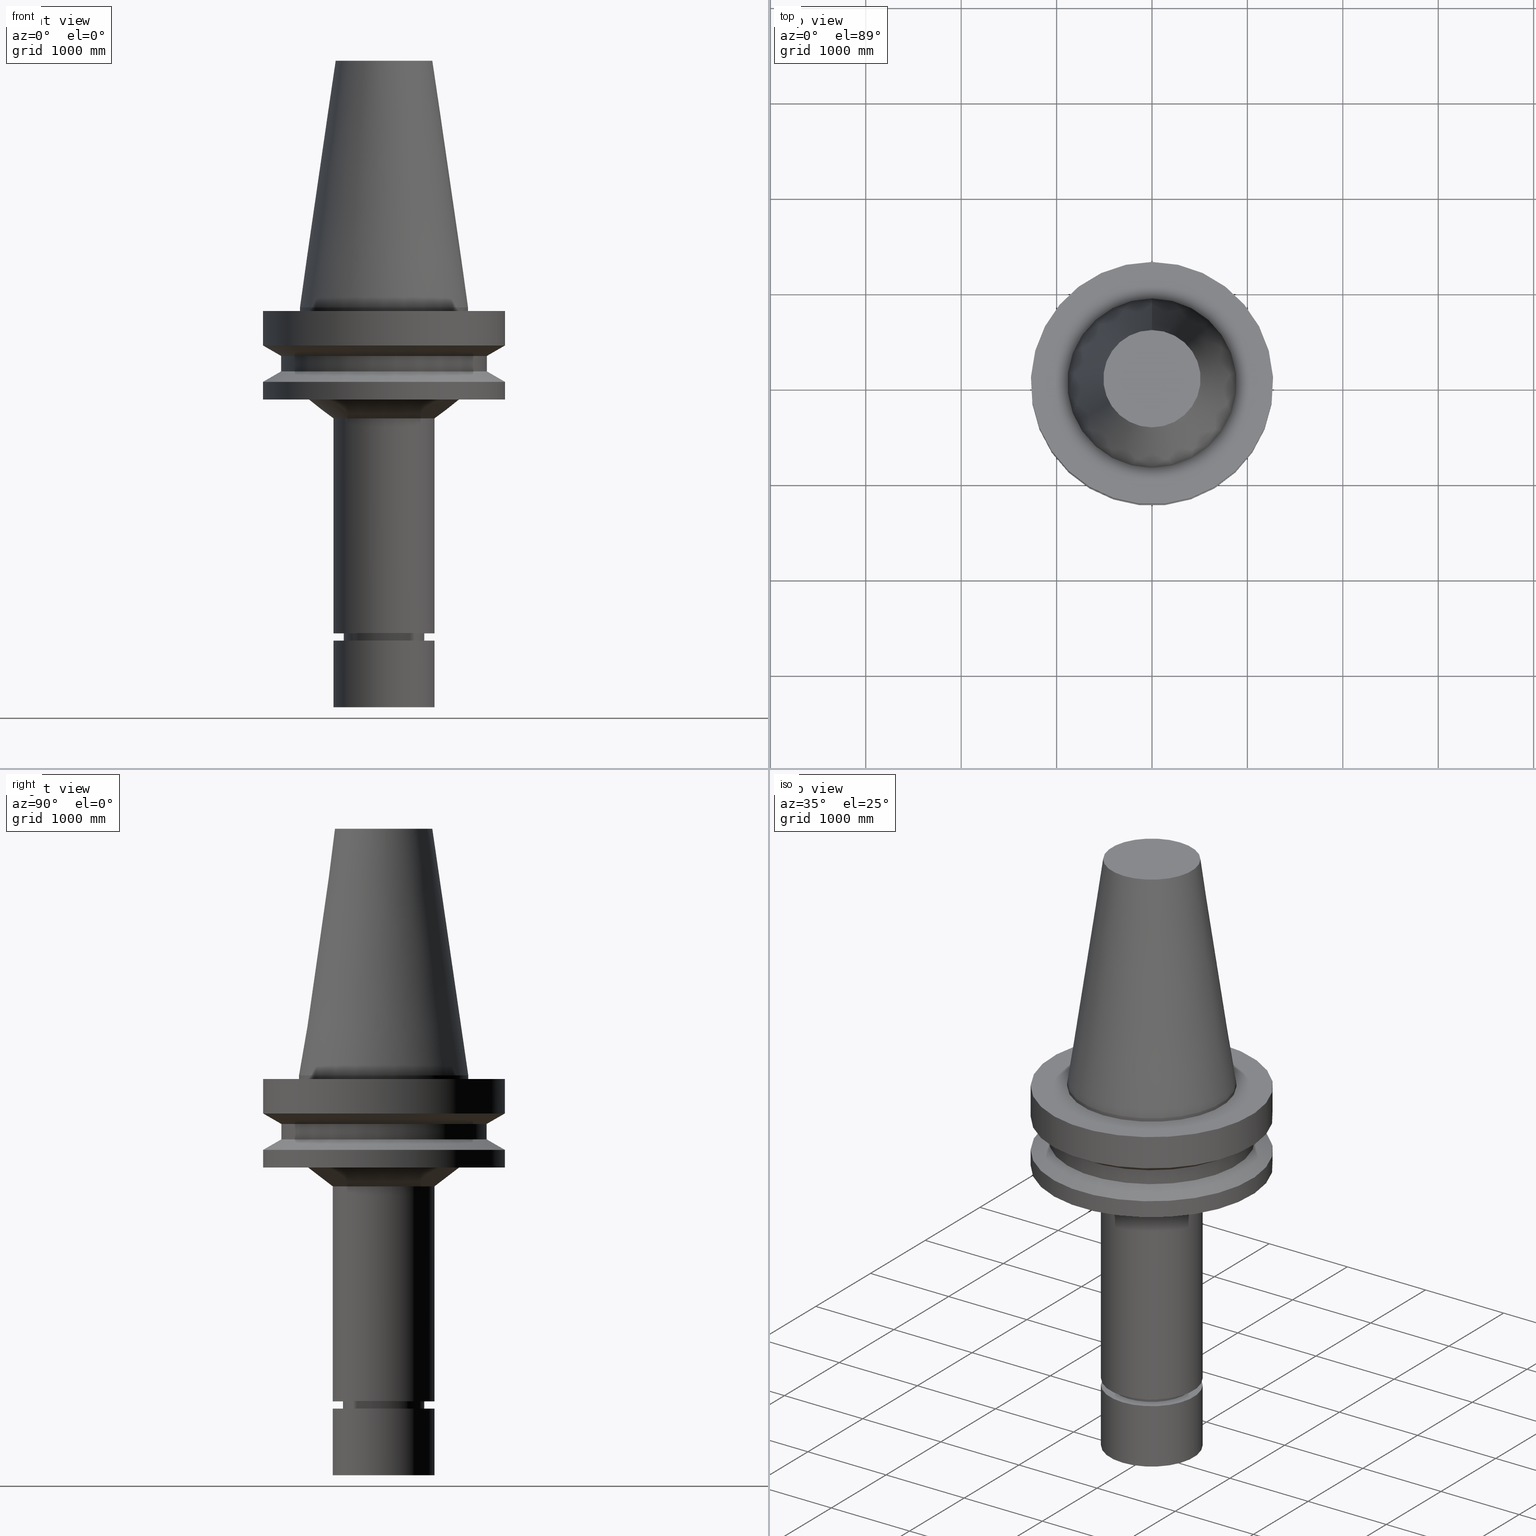
[diagram: canonical four-view strip — front | top / right | iso, engineering-drawing reading convention]
A machine part, canonical four-view strip (front | top / right | iso — engineering-drawing reading convention). The complete STEP part file that produces these views, byte-faithful:
ISO-10303-21;
HEADER;
FILE_DESCRIPTION((''),'1');
FILE_NAME('V:/90_\X2\53D65F9730C730FC30BF\X0\/00_\X2\6DE18DEF30C730FC30BF\X0\/ALL/BBT-BKUS\X2\FF76FF80FF9BFF78FF9E752852A05DE556F3\X0\201801/BBT50-MEGAER/BBT50-MEGAER25-165NL.stp','2018-02-02T08:12:36',(''),(''),'Spatial Interop R21 SP3','Kubotek KeyCreator 2011 V10.0.2 (22737)',' ');
FILE_SCHEMA(('automotive_design'));
ENDSEC;
DATA;
#1=MECHANICAL_DESIGN_GEOMETRIC_PRESENTATION_REPRESENTATION(' ',(#14,#15,#16,#17,#18,#19,#20,#21,#22,#23,#24,#25,#26,#27,#28,#29,#30,#31,#32,#33,#34,#35,#36,#37,#38,#39,#40,#41,#42,#43,#44,#45,#46,#47,#48,#49,#50,#51,#52,#53,#54,#55),#10);
#2=PRODUCT_DEFINITION_CONTEXT('',#56,'design');
#3=APPLICATION_PROTOCOL_DEFINITION('INTERNATIONAL STANDARD','automotive_design',1994,#56);
#4=PRODUCT_CATEGORY_RELATIONSHIP('NONE','NONE',#57,#58);
#5=SHAPE_DEFINITION_REPRESENTATION(#59,#60);
#6=PRODUCT_DEFINITION_CONTEXT('',#61,'design');
#7=APPLICATION_PROTOCOL_DEFINITION('INTERNATIONAL STANDARD','automotive_design',1994,#61);
#8=PRODUCT_CATEGORY_RELATIONSHIP('NONE','NONE',#62,#63);
#9=SHAPE_DEFINITION_REPRESENTATION(#64,#65);
#10= (GEOMETRIC_REPRESENTATION_CONTEXT(3)GLOBAL_UNCERTAINTY_ASSIGNED_CONTEXT((#68))GLOBAL_UNIT_ASSIGNED_CONTEXT((#70,#71,#72))REPRESENTATION_CONTEXT('NONE','WORKSPACE'));
#14=STYLED_ITEM('',(#74,#75),#76);
#15=STYLED_ITEM('',(#77),#78);
#16=STYLED_ITEM('',(#79),#80);
#17=STYLED_ITEM('',(#81),#82);
#18=STYLED_ITEM('',(#83,#84),#85);
#19=STYLED_ITEM('',(#86),#87);
#20=STYLED_ITEM('',(#88,#89),#90);
#21=STYLED_ITEM('',(#91,#92),#93);
#22=STYLED_ITEM('',(#94,#95),#96);
#23=STYLED_ITEM('',(#97,#98),#99);
#24=STYLED_ITEM('',(#100),#101);
#25=STYLED_ITEM('',(#102,#103),#104);
#26=STYLED_ITEM('',(#105),#106);
#27=STYLED_ITEM('',(#107,#108),#109);
#28=STYLED_ITEM('',(#110,#111),#112);
#29=STYLED_ITEM('',(#113,#114),#115);
#30=STYLED_ITEM('',(#116,#117),#118);
#31=STYLED_ITEM('',(#119,#120),#121);
#32=STYLED_ITEM('',(#122),#123);
#33=STYLED_ITEM('',(#124),#125);
#34=STYLED_ITEM('',(#126,#127),#128);
#35=STYLED_ITEM('',(#129,#130),#131);
#36=STYLED_ITEM('',(#132),#133);
#37=STYLED_ITEM('',(#134,#135),#136);
#38=STYLED_ITEM('',(#137),#138);
#39=STYLED_ITEM('',(#139),#140);
#40=STYLED_ITEM('',(#141,#142),#143);
#41=STYLED_ITEM('',(#144),#145);
#42=STYLED_ITEM('',(#146,#147),#148);
#43=STYLED_ITEM('',(#149,#150),#151);
#44=STYLED_ITEM('',(#152,#153),#154);
#45=STYLED_ITEM('',(#155,#156),#157);
#46=STYLED_ITEM('',(#158),#159);
#47=STYLED_ITEM('',(#160),#161);
#48=STYLED_ITEM('',(#162,#163),#164);
#49=STYLED_ITEM('',(#165),#166);
#50=STYLED_ITEM('',(#167),#168);
#51=STYLED_ITEM('',(#169,#170),#171);
#52=STYLED_ITEM('',(#172),#173);
#53=STYLED_ITEM('',(#174),#175);
#54=STYLED_ITEM('',(#176,#177),#178);
#55=STYLED_ITEM('',(#179),#180);
#56=APPLICATION_CONTEXT(' ');
#57=PRODUCT_CATEGORY('part','NONE');
#58=PRODUCT_RELATED_PRODUCT_CATEGORY('detail',' ',(#181));
#59=PRODUCT_DEFINITION_SHAPE('NONE','NONE',#182);
#60=ADVANCED_BREP_SHAPE_REPRESENTATION('Unnamed[1]',(#85,#183),#10);
#61=APPLICATION_CONTEXT(' ');
#62=PRODUCT_CATEGORY('part','NONE');
#63=PRODUCT_RELATED_PRODUCT_CATEGORY('detail',' ',(#184));
#64=PRODUCT_DEFINITION_SHAPE('NONE','NONE',#185);
#65=ADVANCED_BREP_SHAPE_REPRESENTATION('Unnamed[1]',(#109,#186),#10);
#68=UNCERTAINTY_MEASURE_WITH_UNIT(LENGTH_MEASURE(1.0E-006),#70,'','');
#70= (CONVERSION_BASED_UNIT('INCH',#189)LENGTH_UNIT()NAMED_UNIT(#192));
#71= (NAMED_UNIT(#194)PLANE_ANGLE_UNIT()SI_UNIT($,.RADIAN.));
#72= (NAMED_UNIT(#194)SOLID_ANGLE_UNIT()SI_UNIT($,.STERADIAN.));
#74=PRESENTATION_STYLE_ASSIGNMENT((#200));
#75=PRESENTATION_STYLE_ASSIGNMENT((#201));
#76=ADVANCED_FACE('Unnamed[1]',(#202,#203),#204,.T.);
#77=PRESENTATION_STYLE_ASSIGNMENT((#205));
#78=EDGE_CURVE('Unnamed[1]',#206,#206,#207,.T.);
#79=PRESENTATION_STYLE_ASSIGNMENT((#208));
#80=EDGE_CURVE('Unnamed[1]',#209,#209,#210,.T.);
#81=PRESENTATION_STYLE_ASSIGNMENT((#211));
#82=EDGE_CURVE('Unnamed[1]',#212,#212,#213,.T.);
#83=PRESENTATION_STYLE_ASSIGNMENT((#214));
#84=PRESENTATION_STYLE_ASSIGNMENT((#215));
#85=MANIFOLD_SOLID_BREP('Unnamed[1]',#216);
#86=PRESENTATION_STYLE_ASSIGNMENT((#217));
#87=EDGE_CURVE('Unnamed[1]',#218,#218,#219,.T.);
#88=PRESENTATION_STYLE_ASSIGNMENT((#220));
#89=PRESENTATION_STYLE_ASSIGNMENT((#221));
#90=ADVANCED_FACE('Unnamed[1]',(#222,#223),#224,.T.);
#91=PRESENTATION_STYLE_ASSIGNMENT((#225));
#92=PRESENTATION_STYLE_ASSIGNMENT((#226));
#93=ADVANCED_FACE('Unnamed[1]',(#227,#228),#229,.T.);
#94=PRESENTATION_STYLE_ASSIGNMENT((#230));
#95=PRESENTATION_STYLE_ASSIGNMENT((#231));
#96=ADVANCED_FACE('Unnamed[1]',(#232,#233),#234,.T.);
#97=PRESENTATION_STYLE_ASSIGNMENT((#235));
#98=PRESENTATION_STYLE_ASSIGNMENT((#236));
#99=ADVANCED_FACE('Unnamed[1]',(#237),#238,.T.);
#100=PRESENTATION_STYLE_ASSIGNMENT((#239));
#101=EDGE_CURVE('Unnamed[1]',#240,#240,#241,.T.);
#102=PRESENTATION_STYLE_ASSIGNMENT((#242));
#103=PRESENTATION_STYLE_ASSIGNMENT((#243));
#104=ADVANCED_FACE('Unnamed[1]',(#244,#245),#246,.T.);
#105=PRESENTATION_STYLE_ASSIGNMENT((#247));
#106=EDGE_CURVE('Unnamed[1]',#248,#248,#249,.T.);
#107=PRESENTATION_STYLE_ASSIGNMENT((#250));
#108=PRESENTATION_STYLE_ASSIGNMENT((#251));
#109=MANIFOLD_SOLID_BREP('Unnamed[1]',#252);
#110=PRESENTATION_STYLE_ASSIGNMENT((#253));
#111=PRESENTATION_STYLE_ASSIGNMENT((#254));
#112=ADVANCED_FACE('Unnamed[1]',(#255,#256),#257,.T.);
#113=PRESENTATION_STYLE_ASSIGNMENT((#258));
#114=PRESENTATION_STYLE_ASSIGNMENT((#259));
#115=ADVANCED_FACE('Unnamed[1]',(#260,#261),#262,.T.);
#116=PRESENTATION_STYLE_ASSIGNMENT((#263));
#117=PRESENTATION_STYLE_ASSIGNMENT((#264));
#118=ADVANCED_FACE('Unnamed[1]',(#265,#266),#267,.T.);
#119=PRESENTATION_STYLE_ASSIGNMENT((#268));
#120=PRESENTATION_STYLE_ASSIGNMENT((#269));
#121=ADVANCED_FACE('Unnamed[1]',(#270),#271,.T.);
#122=PRESENTATION_STYLE_ASSIGNMENT((#272));
#123=EDGE_CURVE('Unnamed[1]',#273,#273,#274,.T.);
#124=PRESENTATION_STYLE_ASSIGNMENT((#275));
#125=EDGE_CURVE('Unnamed[1]',#276,#276,#277,.T.);
#126=PRESENTATION_STYLE_ASSIGNMENT((#278));
#127=PRESENTATION_STYLE_ASSIGNMENT((#279));
#128=ADVANCED_FACE('Unnamed[1]',(#280,#281),#282,.T.);
#129=PRESENTATION_STYLE_ASSIGNMENT((#283));
#130=PRESENTATION_STYLE_ASSIGNMENT((#284));
#131=ADVANCED_FACE('Unnamed[1]',(#285,#286),#287,.T.);
#132=PRESENTATION_STYLE_ASSIGNMENT((#288));
#133=EDGE_CURVE('Unnamed[1]',#289,#289,#290,.T.);
#134=PRESENTATION_STYLE_ASSIGNMENT((#291));
#135=PRESENTATION_STYLE_ASSIGNMENT((#292));
#136=ADVANCED_FACE('Unnamed[1]',(#293,#294),#295,.T.);
#137=PRESENTATION_STYLE_ASSIGNMENT((#296));
#138=EDGE_CURVE('Unnamed[1]',#297,#297,#298,.T.);
#139=PRESENTATION_STYLE_ASSIGNMENT((#299));
#140=EDGE_CURVE('Unnamed[1]',#300,#300,#301,.T.);
#141=PRESENTATION_STYLE_ASSIGNMENT((#302));
#142=PRESENTATION_STYLE_ASSIGNMENT((#303));
#143=ADVANCED_FACE('Unnamed[1]',(#304,#305),#306,.T.);
#144=PRESENTATION_STYLE_ASSIGNMENT((#307));
#145=EDGE_CURVE('Unnamed[1]',#308,#308,#309,.T.);
#146=PRESENTATION_STYLE_ASSIGNMENT((#310));
#147=PRESENTATION_STYLE_ASSIGNMENT((#311));
#148=ADVANCED_FACE('Unnamed[1]',(#312,#313),#314,.T.);
#149=PRESENTATION_STYLE_ASSIGNMENT((#315));
#150=PRESENTATION_STYLE_ASSIGNMENT((#316));
#151=ADVANCED_FACE('Unnamed[1]',(#317,#318),#319,.T.);
#152=PRESENTATION_STYLE_ASSIGNMENT((#320));
#153=PRESENTATION_STYLE_ASSIGNMENT((#321));
#154=ADVANCED_FACE('Unnamed[1]',(#322,#323),#324,.T.);
#155=PRESENTATION_STYLE_ASSIGNMENT((#325));
#156=PRESENTATION_STYLE_ASSIGNMENT((#326));
#157=ADVANCED_FACE('Unnamed[1]',(#327),#328,.T.);
#158=PRESENTATION_STYLE_ASSIGNMENT((#329));
#159=EDGE_CURVE('Unnamed[1]',#330,#330,#331,.T.);
#160=PRESENTATION_STYLE_ASSIGNMENT((#332));
#161=EDGE_CURVE('Unnamed[1]',#333,#333,#334,.T.);
#162=PRESENTATION_STYLE_ASSIGNMENT((#335));
#163=PRESENTATION_STYLE_ASSIGNMENT((#336));
#164=ADVANCED_FACE('Unnamed[1]',(#337,#338),#339,.T.);
#165=PRESENTATION_STYLE_ASSIGNMENT((#340));
#166=EDGE_CURVE('Unnamed[1]',#341,#341,#342,.T.);
#167=PRESENTATION_STYLE_ASSIGNMENT((#343));
#168=EDGE_CURVE('Unnamed[1]',#344,#344,#345,.T.);
#169=PRESENTATION_STYLE_ASSIGNMENT((#346));
#170=PRESENTATION_STYLE_ASSIGNMENT((#347));
#171=ADVANCED_FACE('Unnamed[1]',(#348),#349,.T.);
#172=PRESENTATION_STYLE_ASSIGNMENT((#350));
#173=EDGE_CURVE('Unnamed[1]',#351,#351,#352,.T.);
#174=PRESENTATION_STYLE_ASSIGNMENT((#353));
#175=EDGE_CURVE('Unnamed[1]',#354,#354,#355,.T.);
#176=PRESENTATION_STYLE_ASSIGNMENT((#356));
#177=PRESENTATION_STYLE_ASSIGNMENT((#357));
#178=ADVANCED_FACE('Unnamed[1]',(#358,#359),#360,.T.);
#179=PRESENTATION_STYLE_ASSIGNMENT((#361));
#180=EDGE_CURVE('Unnamed[1]',#362,#362,#363,.T.);
#181=PRODUCT('Unnamed[1]','Unnamed[1]','PART-Unnamed[1]-DESC',(#364));
#182=PRODUCT_DEFINITION('NONE','NONE',#365,#2);
#183=AXIS2_PLACEMENT_3D('',#366,#367,#368);
#184=PRODUCT('Unnamed[1]','Unnamed[1]','PART-Unnamed[1]-DESC',(#369));
#185=PRODUCT_DEFINITION('NONE','NONE',#370,#6);
#186=AXIS2_PLACEMENT_3D('',#371,#372,#373);
#189=LENGTH_MEASURE_WITH_UNIT(LENGTH_MEASURE(25.4),#374);
#192=DIMENSIONAL_EXPONENTS(1.0,0.0,0.0,0.0,0.0,0.0,0.0);
#194=DIMENSIONAL_EXPONENTS(0.0,0.0,0.0,0.0,0.0,0.0,0.0);
#200=SURFACE_STYLE_USAGE(.BOTH.,#375);
#201=CURVE_STYLE('',#376,POSITIVE_LENGTH_MEASURE(1000.0),#377);
#202=FACE_BOUND('',#378,.T.);
#203=FACE_BOUND('',#379,.T.);
#204=CONICAL_SURFACE('',#380,46.25,1.04719755108882);
#205=CURVE_STYLE('',#381,POSITIVE_LENGTH_MEASURE(1000.0),#382);
#206=VERTEX_POINT('',#383);
#207=CIRCLE('',#384,50.0);
#208=CURVE_STYLE('',#385,POSITIVE_LENGTH_MEASURE(1000.0),#386);
#209=VERTEX_POINT('',#387);
#210=CIRCLE('',#388,50.0);
#211=CURVE_STYLE('',#389,POSITIVE_LENGTH_MEASURE(1000.0),#390);
#212=VERTEX_POINT('',#391);
#213=CIRCLE('',#392,34.925);
#214=SURFACE_STYLE_USAGE(.BOTH.,#393);
#215=CURVE_STYLE('',#394,POSITIVE_LENGTH_MEASURE(1000.0),#395);
#216=CLOSED_SHELL('',(#157,#115,#136,#112,#90,#143,#96,#154,#151,#128,#76,#164,#118,#93,#148,#178,#104,#121));
#217=CURVE_STYLE('',#396,POSITIVE_LENGTH_MEASURE(1000.0),#397);
#218=VERTEX_POINT('',#398);
#219=CIRCLE('',#399,34.925);
#220=SURFACE_STYLE_USAGE(.BOTH.,#400);
#221=CURVE_STYLE('',#401,POSITIVE_LENGTH_MEASURE(1000.0),#402);
#222=FACE_BOUND('',#403,.T.);
#223=FACE_BOUND('',#404,.T.);
#224=CYLINDRICAL_SURFACE('',#405,16.7499999999962);
#225=SURFACE_STYLE_USAGE(.BOTH.,#406);
#226=CURVE_STYLE('',#407,POSITIVE_LENGTH_MEASURE(1000.0),#408);
#227=FACE_BOUND('',#409,.T.);
#228=FACE_BOUND('',#410,.T.);
#229=CYLINDRICAL_SURFACE('',#411,50.0);
#230=SURFACE_STYLE_USAGE(.BOTH.,#412);
#231=CURVE_STYLE('',#413,POSITIVE_LENGTH_MEASURE(1000.0),#414);
#232=FACE_BOUND('',#415,.T.);
#233=FACE_BOUND('',#416,.T.);
#234=CYLINDRICAL_SURFACE('',#417,20.9999999999967);
#235=SURFACE_STYLE_USAGE(.BOTH.,#418);
#236=CURVE_STYLE('',#419,POSITIVE_LENGTH_MEASURE(1000.0),#420);
#237=FACE_OUTER_BOUND('',#421,.T.);
#238=PLANE('',#422);
#239=CURVE_STYLE('',#423,POSITIVE_LENGTH_MEASURE(1000.0),#424);
#240=VERTEX_POINT('',#425);
#241=CIRCLE('',#426,14.9000000000006);
#242=SURFACE_STYLE_USAGE(.BOTH.,#427);
#243=CURVE_STYLE('',#428,POSITIVE_LENGTH_MEASURE(1000.0),#429);
#244=FACE_BOUND('',#430,.T.);
#245=FACE_BOUND('',#431,.T.);
#246=CONICAL_SURFACE('',#432,27.5020833325942,0.144812498253157);
#247=CURVE_STYLE('',#433,POSITIVE_LENGTH_MEASURE(1000.0),#434);
#248=VERTEX_POINT('',#435);
#249=CIRCLE('',#436,50.0);
#250=SURFACE_STYLE_USAGE(.BOTH.,#437);
#251=CURVE_STYLE('',#438,POSITIVE_LENGTH_MEASURE(1000.0),#439);
#252=CLOSED_SHELL('',(#171,#99,#131));
#253=SURFACE_STYLE_USAGE(.BOTH.,#440);
#254=CURVE_STYLE('',#441,POSITIVE_LENGTH_MEASURE(1000.0),#442);
#255=FACE_BOUND('',#443,.T.);
#256=FACE_BOUND('',#444,.T.);
#257=CONICAL_SURFACE('',#445,16.3750000000008,1.04719755120057);
#258=SURFACE_STYLE_USAGE(.BOTH.,#446);
#259=CURVE_STYLE('',#447,POSITIVE_LENGTH_MEASURE(1000.0),#448);
#260=FACE_BOUND('',#449,.T.);
#261=FACE_BOUND('',#450,.T.);
#262=CONICAL_SURFACE('',#451,15.4500000000003,0.523598775597999);
#263=SURFACE_STYLE_USAGE(.BOTH.,#452);
#264=CURVE_STYLE('',#453,POSITIVE_LENGTH_MEASURE(1000.0),#454);
#265=FACE_BOUND('',#455,.T.);
#266=FACE_BOUND('',#456,.T.);
#267=CONICAL_SURFACE('',#457,46.25,1.04719755108882);
#268=SURFACE_STYLE_USAGE(.BOTH.,#458);
#269=CURVE_STYLE('',#459,POSITIVE_LENGTH_MEASURE(1000.0),#460);
#270=FACE_OUTER_BOUND('',#461,.T.);
#271=PLANE('',#462);
#272=CURVE_STYLE('',#463,POSITIVE_LENGTH_MEASURE(1000.0),#464);
#273=VERTEX_POINT('',#465);
#274=CIRCLE('',#466,16.7500000000017);
#275=CURVE_STYLE('',#467,POSITIVE_LENGTH_MEASURE(1000.0),#468);
#276=VERTEX_POINT('',#469);
#277=CIRCLE('',#470,16.0);
#278=SURFACE_STYLE_USAGE(.BOTH.,#471);
#279=CURVE_STYLE('',#472,POSITIVE_LENGTH_MEASURE(1000.0),#473);
#280=FACE_BOUND('',#474,.T.);
#281=FACE_BOUND('',#475,.T.);
#282=CYLINDRICAL_SURFACE('',#476,50.0);
#283=SURFACE_STYLE_USAGE(.BOTH.,#477);
#284=CURVE_STYLE('',#478,POSITIVE_LENGTH_MEASURE(1000.0),#479);
#285=FACE_BOUND('',#480,.T.);
#286=FACE_BOUND('',#481,.T.);
#287=CYLINDRICAL_SURFACE('',#482,21.0);
#288=CURVE_STYLE('',#483,POSITIVE_LENGTH_MEASURE(1000.0),#484);
#289=VERTEX_POINT('',#485);
#290=CIRCLE('',#486,21.0);
#291=SURFACE_STYLE_USAGE(.BOTH.,#487);
#292=CURVE_STYLE('',#488,POSITIVE_LENGTH_MEASURE(1000.0),#489);
#293=FACE_BOUND('',#490,.T.);
#294=FACE_BOUND('',#491,.T.);
#295=CYLINDRICAL_SURFACE('',#492,16.0);
#296=CURVE_STYLE('',#493,POSITIVE_LENGTH_MEASURE(1000.0),#494);
#297=VERTEX_POINT('',#495);
#298=CIRCLE('',#496,21.0000000000002);
#299=CURVE_STYLE('',#497,POSITIVE_LENGTH_MEASURE(1000.0),#498);
#300=VERTEX_POINT('',#499);
#301=CIRCLE('',#500,42.5);
#302=SURFACE_STYLE_USAGE(.BOTH.,#501);
#303=CURVE_STYLE('',#502,POSITIVE_LENGTH_MEASURE(1000.0),#503);
#304=FACE_OUTER_BOUND('',#504,.T.);
#305=FACE_BOUND('',#505,.T.);
#306=PLANE('',#506);
#307=CURVE_STYLE('',#507,POSITIVE_LENGTH_MEASURE(1000.0),#508);
#308=VERTEX_POINT('',#509);
#309=CIRCLE('',#510,21.0);
#310=SURFACE_STYLE_USAGE(.BOTH.,#511);
#311=CURVE_STYLE('',#512,POSITIVE_LENGTH_MEASURE(1000.0),#513);
#312=FACE_BOUND('',#514,.T.);
#313=FACE_OUTER_BOUND('',#515,.T.);
#314=PLANE('',#516);
#315=SURFACE_STYLE_USAGE(.BOTH.,#517);
#316=CURVE_STYLE('',#518,POSITIVE_LENGTH_MEASURE(1000.0),#519);
#317=FACE_OUTER_BOUND('',#520,.T.);
#318=FACE_BOUND('',#521,.T.);
#319=PLANE('',#522);
#320=SURFACE_STYLE_USAGE(.BOTH.,#523);
#321=CURVE_STYLE('',#524,POSITIVE_LENGTH_MEASURE(1000.0),#525);
#322=FACE_BOUND('',#526,.T.);
#323=FACE_BOUND('',#527,.T.);
#324=CONICAL_SURFACE('',#528,26.0717863494507,0.917452318827352);
#325=SURFACE_STYLE_USAGE(.BOTH.,#529);
#326=CURVE_STYLE('',#530,POSITIVE_LENGTH_MEASURE(1000.0),#531);
#327=FACE_OUTER_BOUND('',#532,.T.);
#328=PLANE('',#533);
#329=CURVE_STYLE('',#534,POSITIVE_LENGTH_MEASURE(1000.0),#535);
#330=VERTEX_POINT('',#536);
#331=CIRCLE('',#537,20.9999999999932);
#332=CURVE_STYLE('',#538,POSITIVE_LENGTH_MEASURE(1000.0),#539);
#333=VERTEX_POINT('',#540);
#334=CIRCLE('',#541,16.7499999999907);
#335=SURFACE_STYLE_USAGE(.BOTH.,#542);
#336=CURVE_STYLE('',#543,POSITIVE_LENGTH_MEASURE(1000.0),#544);
#337=FACE_BOUND('',#545,.T.);
#338=FACE_BOUND('',#546,.T.);
#339=CYLINDRICAL_SURFACE('',#547,42.5);
#340=CURVE_STYLE('',#548,POSITIVE_LENGTH_MEASURE(1000.0),#549);
#341=VERTEX_POINT('',#550);
#342=CIRCLE('',#551,31.1435726989081);
#343=CURVE_STYLE('',#552,POSITIVE_LENGTH_MEASURE(1000.0),#553);
#344=VERTEX_POINT('',#554);
#345=CIRCLE('',#555,50.0);
#346=SURFACE_STYLE_USAGE(.BOTH.,#556);
#347=CURVE_STYLE('',#557,POSITIVE_LENGTH_MEASURE(1000.0),#558);
#348=FACE_OUTER_BOUND('',#559,.T.);
#349=PLANE('',#560);
#350=CURVE_STYLE('',#561,POSITIVE_LENGTH_MEASURE(1000.0),#562);
#351=VERTEX_POINT('',#563);
#352=CIRCLE('',#564,16.0);
#353=CURVE_STYLE('',#565,POSITIVE_LENGTH_MEASURE(1000.0),#566);
#354=VERTEX_POINT('',#567);
#355=CIRCLE('',#568,20.0791666651884);
#356=SURFACE_STYLE_USAGE(.BOTH.,#569);
#357=CURVE_STYLE('',#570,POSITIVE_LENGTH_MEASURE(1000.0),#571);
#358=FACE_BOUND('',#572,.T.);
#359=FACE_BOUND('',#573,.T.);
#360=CYLINDRICAL_SURFACE('',#574,34.925);
#361=CURVE_STYLE('',#575,POSITIVE_LENGTH_MEASURE(1000.0),#576);
#362=VERTEX_POINT('',#577);
#363=CIRCLE('',#578,42.5);
#364=PRODUCT_CONTEXT('',#56,'mechanical');
#365=PRODUCT_DEFINITION_FORMATION_WITH_SPECIFIED_SOURCE(' ','NONE',#181,.NOT_KNOWN.);
#366=CARTESIAN_POINT('',(0.0,0.0,0.0));
#367=DIRECTION('',(0.0,0.0,1.0));
#368=DIRECTION('',(1.0,0.0,0.0));
#369=PRODUCT_CONTEXT('',#61,'mechanical');
#370=PRODUCT_DEFINITION_FORMATION_WITH_SPECIFIED_SOURCE(' ','NONE',#184,.NOT_KNOWN.);
#371=CARTESIAN_POINT('',(0.0,0.0,0.0));
#372=DIRECTION('',(0.0,0.0,1.0));
#373=DIRECTION('',(1.0,0.0,0.0));
#374= (NAMED_UNIT(#192)LENGTH_UNIT()SI_UNIT(.MILLI.,.METRE.));
#375=SURFACE_SIDE_STYLE('',(#580));
#376=DRAUGHTING_PRE_DEFINED_CURVE_FONT('continuous');
#377=COLOUR_RGB('',0.0,1.0,0.0);
#378=EDGE_LOOP('',(#581));
#379=EDGE_LOOP('',(#582));
#380=AXIS2_PLACEMENT_3D('',#583,#584,#585);
#381=DRAUGHTING_PRE_DEFINED_CURVE_FONT('continuous');
#382=COLOUR_RGB('',0.0,1.0,0.0);
#383=CARTESIAN_POINT('',(1.87983283669119E-015,50.0,-30.7000000000001));
#384=AXIS2_PLACEMENT_3D('',#586,#587,#588);
#385=DRAUGHTING_PRE_DEFINED_CURVE_FONT('continuous');
#386=COLOUR_RGB('',0.0,1.0,0.0);
#387=CARTESIAN_POINT('',(9.61347737330674E-016,50.0,-15.7));
#388=AXIS2_PLACEMENT_3D('',#589,#590,#591);
#389=DRAUGHTING_PRE_DEFINED_CURVE_FONT('continuous');
#390=COLOUR_RGB('',0.0,1.0,0.0);
#391=CARTESIAN_POINT('',(9.18485099360511E-017,34.925,-1.5));
#392=AXIS2_PLACEMENT_3D('',#592,#593,#594);
#393=SURFACE_SIDE_STYLE('',(#595));
#394=DRAUGHTING_PRE_DEFINED_CURVE_FONT('continuous');
#395=COLOUR_RGB('',0.0,1.0,0.0);
#396=DRAUGHTING_PRE_DEFINED_CURVE_FONT('continuous');
#397=COLOUR_RGB('',0.0,1.0,0.0);
#398=CARTESIAN_POINT('',(-4.30483861169435E-031,34.925,4.27707894602213E-015));
#399=AXIS2_PLACEMENT_3D('',#596,#597,#598);
#400=SURFACE_SIDE_STYLE('',(#599));
#401=DRAUGHTING_PRE_DEFINED_CURVE_FONT('continuous');
#402=COLOUR_RGB('',0.0,1.0,0.0);
#403=EDGE_LOOP('',(#600));
#404=EDGE_LOOP('',(#601));
#405=AXIS2_PLACEMENT_3D('',#602,#603,#604);
#406=SURFACE_SIDE_STYLE('',(#605));
#407=DRAUGHTING_PRE_DEFINED_CURVE_FONT('continuous');
#408=COLOUR_RGB('',0.0,1.0,0.0);
#409=EDGE_LOOP('',(#606));
#410=EDGE_LOOP('',(#607));
#411=AXIS2_PLACEMENT_3D('',#608,#609,#610);
#412=SURFACE_SIDE_STYLE('',(#611));
#413=DRAUGHTING_PRE_DEFINED_CURVE_FONT('continuous');
#414=COLOUR_RGB('',0.0,1.0,0.0);
#415=EDGE_LOOP('',(#612));
#416=EDGE_LOOP('',(#613));
#417=AXIS2_PLACEMENT_3D('',#614,#615,#616);
#418=SURFACE_SIDE_STYLE('',(#617));
#419=DRAUGHTING_PRE_DEFINED_CURVE_FONT('continuous');
#420=COLOUR_RGB('',0.0,1.0,0.0);
#421=EDGE_LOOP('',(#618));
#422=AXIS2_PLACEMENT_3D('',#619,#620,#621);
#423=DRAUGHTING_PRE_DEFINED_CURVE_FONT('continuous');
#424=COLOUR_RGB('',0.0,1.0,0.0);
#425=CARTESIAN_POINT('',(9.47876622540053E-015,14.9000000000007,-154.8));
#426=AXIS2_PLACEMENT_3D('',#622,#623,#624);
#427=SURFACE_SIDE_STYLE('',(#625));
#428=DRAUGHTING_PRE_DEFINED_CURVE_FONT('continuous');
#429=COLOUR_RGB('',0.0,1.0,0.0);
#430=EDGE_LOOP('',(#626));
#431=EDGE_LOOP('',(#627));
#432=AXIS2_PLACEMENT_3D('',#628,#629,#630);
#433=DRAUGHTING_PRE_DEFINED_CURVE_FONT('continuous');
#434=COLOUR_RGB('',0.0,1.0,0.0);
#435=CARTESIAN_POINT('',(9.18485099360509E-017,50.0,-1.49999999999999));
#436=AXIS2_PLACEMENT_3D('',#631,#632,#633);
#437=SURFACE_SIDE_STYLE('',(#634));
#438=DRAUGHTING_PRE_DEFINED_CURVE_FONT('continuous');
#439=COLOUR_RGB('',0.0,1.0,0.0);
#440=SURFACE_SIDE_STYLE('',(#635));
#441=DRAUGHTING_PRE_DEFINED_CURVE_FONT('continuous');
#442=COLOUR_RGB('',0.0,1.0,0.0);
#443=EDGE_LOOP('',(#636));
#444=EDGE_LOOP('',(#637));
#445=AXIS2_PLACEMENT_3D('',#638,#639,#640);
#446=SURFACE_SIDE_STYLE('',(#641));
#447=DRAUGHTING_PRE_DEFINED_CURVE_FONT('continuous');
#448=COLOUR_RGB('',0.0,1.0,0.0);
#449=EDGE_LOOP('',(#642));
#450=EDGE_LOOP('',(#643));
#451=AXIS2_PLACEMENT_3D('',#644,#645,#646);
#452=SURFACE_SIDE_STYLE('',(#647));
#453=DRAUGHTING_PRE_DEFINED_CURVE_FONT('continuous');
#454=COLOUR_RGB('',0.0,1.0,0.0);
#455=EDGE_LOOP('',(#648));
#456=EDGE_LOOP('',(#649));
#457=AXIS2_PLACEMENT_3D('',#650,#651,#652);
#458=SURFACE_SIDE_STYLE('',(#653));
#459=DRAUGHTING_PRE_DEFINED_CURVE_FONT('continuous');
#460=COLOUR_RGB('',0.0,1.0,0.0);
#461=EDGE_LOOP('',(#654));
#462=AXIS2_PLACEMENT_3D('',#655,#656,#657);
#463=DRAUGHTING_PRE_DEFINED_CURVE_FONT('continuous');
#464=COLOUR_RGB('',0.0,1.0,0.0);
#465=CARTESIAN_POINT('',(8.60114298906023E-015,16.7500000000017,-140.467324865401));
#466=AXIS2_PLACEMENT_3D('',#658,#659,#660);
#467=DRAUGHTING_PRE_DEFINED_CURVE_FONT('continuous');
#468=COLOUR_RGB('',0.0,1.0,0.0);
#469=CARTESIAN_POINT('',(9.36210294914078E-015,16.0,-152.894744111674));
#470=AXIS2_PLACEMENT_3D('',#661,#662,#663);
#471=SURFACE_SIDE_STYLE('',(#664));
#472=DRAUGHTING_PRE_DEFINED_CURVE_FONT('continuous');
#473=COLOUR_RGB('',0.0,1.0,0.0);
#474=EDGE_LOOP('',(#665));
#475=EDGE_LOOP('',(#666));
#476=AXIS2_PLACEMENT_3D('',#667,#668,#669);
#477=SURFACE_SIDE_STYLE('',(#670));
#478=DRAUGHTING_PRE_DEFINED_CURVE_FONT('continuous');
#479=COLOUR_RGB('',0.0,1.0,0.0);
#480=EDGE_LOOP('',(#671));
#481=EDGE_LOOP('',(#672));
#482=AXIS2_PLACEMENT_3D('',#673,#674,#675);
#483=DRAUGHTING_PRE_DEFINED_CURVE_FONT('continuous');
#484=COLOUR_RGB('',0.0,1.0,0.0);
#485=CARTESIAN_POINT('',(1.01033360929657E-014,21.0,-165.0));
#486=AXIS2_PLACEMENT_3D('',#676,#677,#678);
#487=SURFACE_SIDE_STYLE('',(#679));
#488=DRAUGHTING_PRE_DEFINED_CURVE_FONT('continuous');
#489=COLOUR_RGB('',0.0,1.0,0.0);
#490=EDGE_LOOP('',(#680));
#491=EDGE_LOOP('',(#681));
#492=AXIS2_PLACEMENT_3D('',#682,#683,#684);
#493=DRAUGHTING_PRE_DEFINED_CURVE_FONT('continuous');
#494=COLOUR_RGB('',0.0,1.0,0.0);
#495=CARTESIAN_POINT('',(8.23574972426594E-015,21.0000000000003,-134.5));
#496=AXIS2_PLACEMENT_3D('',#685,#686,#687);
#497=DRAUGHTING_PRE_DEFINED_CURVE_FONT('continuous');
#498=COLOUR_RGB('',0.0,1.0,0.0);
#499=CARTESIAN_POINT('',(1.61468902694397E-015,42.5,-26.3698729800001));
#500=AXIS2_PLACEMENT_3D('',#688,#689,#690);
#501=SURFACE_SIDE_STYLE('',(#691));
#502=DRAUGHTING_PRE_DEFINED_CURVE_FONT('continuous');
#503=COLOUR_RGB('',0.0,1.0,0.0);
#504=EDGE_LOOP('',(#692));
#505=EDGE_LOOP('',(#693));
#506=AXIS2_PLACEMENT_3D('',#694,#695,#696);
#507=DRAUGHTING_PRE_DEFINED_CURVE_FONT('continuous');
#508=COLOUR_RGB('',0.0,1.0,0.0);
#509=CARTESIAN_POINT('',(8.41944674413805E-015,21.0,-137.5));
#510=AXIS2_PLACEMENT_3D('',#697,#698,#699);
#511=SURFACE_SIDE_STYLE('',(#700));
#512=DRAUGHTING_PRE_DEFINED_CURVE_FONT('continuous');
#513=COLOUR_RGB('',0.0,1.0,0.0);
#514=EDGE_LOOP('',(#701));
#515=EDGE_LOOP('',(#702));
#516=AXIS2_PLACEMENT_3D('',#703,#704,#705);
#517=SURFACE_SIDE_STYLE('',(#706));
#518=DRAUGHTING_PRE_DEFINED_CURVE_FONT('continuous');
#519=COLOUR_RGB('',0.0,1.0,0.0);
#520=EDGE_LOOP('',(#707));
#521=EDGE_LOOP('',(#708));
#522=AXIS2_PLACEMENT_3D('',#709,#710,#711);
#523=SURFACE_SIDE_STYLE('',(#712));
#524=DRAUGHTING_PRE_DEFINED_CURVE_FONT('continuous');
#525=COLOUR_RGB('',0.0,1.0,0.0);
#526=EDGE_LOOP('',(#713));
#527=EDGE_LOOP('',(#714));
#528=AXIS2_PLACEMENT_3D('',#715,#716,#717);
#529=SURFACE_SIDE_STYLE('',(#718));
#530=DRAUGHTING_PRE_DEFINED_CURVE_FONT('continuous');
#531=COLOUR_RGB('',0.0,1.0,0.0);
#532=EDGE_LOOP('',(#719));
#533=AXIS2_PLACEMENT_3D('',#720,#721,#722);
#534=DRAUGHTING_PRE_DEFINED_CURVE_FONT('continuous');
#535=COLOUR_RGB('',0.0,1.0,0.0);
#536=CARTESIAN_POINT('',(2.80228874472394E-015,20.9999999999932,-45.7648482268521));
#537=AXIS2_PLACEMENT_3D('',#723,#724,#725);
#538=DRAUGHTING_PRE_DEFINED_CURVE_FONT('continuous');
#539=COLOUR_RGB('',0.0,1.0,0.0);
#540=CARTESIAN_POINT('',(8.2357497242659E-015,16.7499999999907,-134.499999999999));
#541=AXIS2_PLACEMENT_3D('',#726,#727,#728);
#542=SURFACE_SIDE_STYLE('',(#729));
#543=DRAUGHTING_PRE_DEFINED_CURVE_FONT('continuous');
#544=COLOUR_RGB('',0.0,1.0,0.0);
#545=EDGE_LOOP('',(#730));
#546=EDGE_LOOP('',(#731));
#547=AXIS2_PLACEMENT_3D('',#732,#733,#734);
#548=DRAUGHTING_PRE_DEFINED_CURVE_FONT('continuous');
#549=COLOUR_RGB('',0.0,1.0,0.0);
#550=CARTESIAN_POINT('',(2.32682891837996E-015,31.1435726989081,-37.9999999999998));
#551=AXIS2_PLACEMENT_3D('',#735,#736,#737);
#552=DRAUGHTING_PRE_DEFINED_CURVE_FONT('continuous');
#553=COLOUR_RGB('',0.0,1.0,0.0);
#554=CARTESIAN_POINT('',(2.32682891837996E-015,50.0,-37.9999999999998));
#555=AXIS2_PLACEMENT_3D('',#738,#739,#740);
#556=SURFACE_SIDE_STYLE('',(#741));
#557=DRAUGHTING_PRE_DEFINED_CURVE_FONT('continuous');
#558=COLOUR_RGB('',0.0,1.0,0.0);
#559=EDGE_LOOP('',(#742));
#560=AXIS2_PLACEMENT_3D('',#743,#744,#745);
#561=DRAUGHTING_PRE_DEFINED_CURVE_FONT('continuous');
#562=COLOUR_RGB('',0.0,1.0,0.0);
#563=CARTESIAN_POINT('',(8.62765737002817E-015,16.0,-140.90033756729));
#564=AXIS2_PLACEMENT_3D('',#746,#747,#748);
#565=DRAUGHTING_PRE_DEFINED_CURVE_FONT('continuous');
#566=COLOUR_RGB('',0.0,1.0,0.0);
#567=CARTESIAN_POINT('',(-6.23345220766003E-015,20.0791666651884,101.8));
#568=AXIS2_PLACEMENT_3D('',#749,#750,#751);
#569=SURFACE_SIDE_STYLE('',(#752));
#570=DRAUGHTING_PRE_DEFINED_CURVE_FONT('continuous');
#571=COLOUR_RGB('',0.0,1.0,0.0);
#572=EDGE_LOOP('',(#753));
#573=EDGE_LOOP('',(#754));
#574=AXIS2_PLACEMENT_3D('',#755,#756,#757);
#575=DRAUGHTING_PRE_DEFINED_CURVE_FONT('continuous');
#576=COLOUR_RGB('',0.0,1.0,0.0);
#577=CARTESIAN_POINT('',(1.2264915470779E-015,42.5,-20.03012702));
#578=AXIS2_PLACEMENT_3D('',#758,#759,#760);
#580=SURFACE_STYLE_FILL_AREA(#761);
#581=ORIENTED_EDGE('',*,*,#140,.F.);
#582=ORIENTED_EDGE('',*,*,#78,.T.);
#583=CARTESIAN_POINT('',(1.74726093181758E-015,1.65864326741113E-014,-28.5349364900001));
#584=DIRECTION('',(6.12323399573677E-017,2.72265846766479E-017,-1.0));
#585=DIRECTION('',(-6.4943002195643E-033,1.0,2.72265846766479E-017));
#586=CARTESIAN_POINT('',(1.87983283669119E-015,1.66453799590967E-014,-30.7));
#587=DIRECTION('',(-6.12323399573677E-017,-2.72265846766671E-017,1.0));
#588=DIRECTION('',(-6.49430021956856E-033,1.0,2.72265846766671E-017));
#589=CARTESIAN_POINT('',(9.61347737330675E-016,1.62369811889471E-014,-15.7));
#590=DIRECTION('',(-6.12323399573677E-017,-2.72265846766671E-017,1.0));
#591=DIRECTION('',(-6.49430021956856E-033,1.0,2.72265846766671E-017));
#592=CARTESIAN_POINT('',(9.18485099360515E-017,1.58503636865388E-014,-1.5));
#593=DIRECTION('',(-6.12323399573677E-017,-2.72265846766536E-017,1.0));
#594=DIRECTION('',(-6.4943002195703E-033,1.0,2.72265846766536E-017));
#595=SURFACE_STYLE_FILL_AREA(#762);
#596=CARTESIAN_POINT('',(-1.94867425992095E-046,1.58095238095238E-014,1.93610827293772E-030));
#597=DIRECTION('',(-6.12323399573677E-017,-2.72265846766536E-017,1.0));
#598=DIRECTION('',(-6.4943002195703E-033,1.0,2.72265846766536E-017));
#599=SURFACE_STYLE_FILL_AREA(#763);
#600=ORIENTED_EDGE('',*,*,#161,.F.);
#601=ORIENTED_EDGE('',*,*,#123,.T.);
#602=CARTESIAN_POINT('',(8.41844635666307E-015,1.95527343864023E-014,-137.4836624327));
#603=DIRECTION('',(-6.12323399573677E-017,-2.72265846766723E-017,1.0));
#604=DIRECTION('',(-6.49430021956661E-033,1.0,2.72265846766723E-017));
#605=SURFACE_STYLE_FILL_AREA(#764);
#606=ORIENTED_EDGE('',*,*,#106,.F.);
#607=ORIENTED_EDGE('',*,*,#80,.T.);
#608=CARTESIAN_POINT('',(5.26598123633363E-016,1.60436724377429E-014,-8.60000000000002));
#609=DIRECTION('',(-6.12323399573677E-017,-2.72265846766671E-017,1.0));
#610=DIRECTION('',(-6.49430021956856E-033,1.0,2.72265846766671E-017));
#611=SURFACE_STYLE_FILL_AREA(#765);
#612=ORIENTED_EDGE('',*,*,#159,.F.);
#613=ORIENTED_EDGE('',*,*,#138,.T.);
#614=CARTESIAN_POINT('',(5.51901923449494E-015,1.82635218867588E-014,-90.132424113426));
#615=DIRECTION('',(-6.12323399573677E-017,-2.72265846766314E-017,1.0));
#616=DIRECTION('',(-6.49430021957265E-033,1.0,2.72265846766314E-017));
#617=SURFACE_STYLE_FILL_AREA(#766);
#618=ORIENTED_EDGE('',*,*,#145,.F.);
#619=CARTESIAN_POINT('',(8.41944674413805E-015,10.5,-137.5));
#620=DIRECTION('',(-6.12323399573677E-017,-1.22464679914735E-016,1.0));
#621=DIRECTION('',(1.23259516440783E-032,-1.0,-1.22464679914735E-016));
#622=CARTESIAN_POINT('',(9.47876622540053E-015,2.00241991174677E-014,-154.8));
#623=DIRECTION('',(-6.12323399573677E-017,-2.72265846766022E-017,1.0));
#624=DIRECTION('',(-6.49430021956688E-033,1.0,2.72265846766022E-017));
#625=SURFACE_STYLE_FILL_AREA(#767);
#626=ORIENTED_EDGE('',*,*,#175,.F.);
#627=ORIENTED_EDGE('',*,*,#87,.T.);
#628=CARTESIAN_POINT('',(-3.11672610383001E-015,1.44236906494828E-014,50.9));
#629=DIRECTION('',(6.12323399573677E-017,2.72265846766601E-017,-1.0));
#630=DIRECTION('',(-6.49430021957166E-033,1.0,2.72265846766601E-017));
#631=CARTESIAN_POINT('',(9.18485099360515E-017,1.58503636865388E-014,-1.5));
#632=DIRECTION('',(-6.12323399573677E-017,-2.72265846766671E-017,1.0));
#633=DIRECTION('',(-6.49430021956856E-033,1.0,2.72265846766671E-017));
#634=SURFACE_STYLE_FILL_AREA(#768);
#635=SURFACE_STYLE_FILL_AREA(#769);
#636=ORIENTED_EDGE('',*,*,#123,.F.);
#637=ORIENTED_EDGE('',*,*,#173,.T.);
#638=CARTESIAN_POINT('',(8.6144001795442E-015,1.96398640527698E-014,-140.683831216346));
#639=DIRECTION('',(-6.12323399573677E-017,-2.72265846766198E-017,1.0));
#640=DIRECTION('',(-6.49430021956681E-033,1.0,2.72265846766198E-017));
#641=SURFACE_STYLE_FILL_AREA(#770);
#642=ORIENTED_EDGE('',*,*,#125,.F.);
#643=ORIENTED_EDGE('',*,*,#101,.T.);
#644=CARTESIAN_POINT('',(9.42043458727065E-015,1.99982623120806E-014,-153.847372055837));
#645=DIRECTION('',(-6.12323399573677E-017,-2.72265846766399E-017,1.0));
#646=DIRECTION('',(-6.49430021956229E-033,1.0,2.72265846766399E-017));
#647=SURFACE_STYLE_FILL_AREA(#771);
#648=ORIENTED_EDGE('',*,*,#80,.F.);
#649=ORIENTED_EDGE('',*,*,#180,.T.);
#650=CARTESIAN_POINT('',(1.09391964220429E-015,1.62959284739324E-014,-17.86506351));
#651=DIRECTION('',(-6.12323399573677E-017,-2.72265846766479E-017,1.0));
#652=DIRECTION('',(-6.4943002195643E-033,1.0,2.72265846766479E-017));
#653=SURFACE_STYLE_FILL_AREA(#772);
#654=ORIENTED_EDGE('',*,*,#175,.T.);
#655=CARTESIAN_POINT('',(-6.23345220766003E-015,10.0395833325942,101.8));
#656=DIRECTION('',(-6.12323399573677E-017,-1.22464679914735E-016,1.0));
#657=DIRECTION('',(-1.23259516440783E-032,1.0,1.22464679914735E-016));
#658=CARTESIAN_POINT('',(8.60114298906023E-015,1.96339693242728E-014,-140.467324865401));
#659=DIRECTION('',(-6.12323399573677E-017,-2.72265846766634E-017,1.0));
#660=DIRECTION('',(-6.49430021956984E-033,1.0,2.72265846766634E-017));
#661=CARTESIAN_POINT('',(9.36210294914078E-015,1.99723255066935E-014,-152.894744111674));
#662=DIRECTION('',(-6.12323399573677E-017,-2.72265846766751E-017,1.0));
#663=DIRECTION('',(-6.49430021956923E-033,1.0,2.72265846766751E-017));
#664=SURFACE_STYLE_FILL_AREA(#773);
#665=ORIENTED_EDGE('',*,*,#78,.F.);
#666=ORIENTED_EDGE('',*,*,#168,.T.);
#667=CARTESIAN_POINT('',(2.10333087753557E-015,1.67447569931664E-014,-34.3499999999999));
#668=DIRECTION('',(-6.12323399573677E-017,-2.72265846766671E-017,1.0));
#669=DIRECTION('',(-6.49430021956856E-033,1.0,2.72265846766671E-017));
#670=SURFACE_STYLE_FILL_AREA(#774);
#671=ORIENTED_EDGE('',*,*,#133,.F.);
#672=ORIENTED_EDGE('',*,*,#145,.T.);
#673=CARTESIAN_POINT('',(9.26139141855186E-015,1.99275447418656E-014,-151.25));
#674=DIRECTION('',(6.12323399573677E-017,2.72265846766401E-017,-1.0));
#675=DIRECTION('',(-6.4943002195671E-033,1.0,2.72265846766401E-017));
#676=CARTESIAN_POINT('',(1.01033360929657E-014,2.03019102811694E-014,-165.0));
#677=DIRECTION('',(6.12323399573677E-017,2.72265846766401E-017,-1.0));
#678=DIRECTION('',(-6.4943002195671E-033,1.0,2.72265846766401E-017));
#679=SURFACE_STYLE_FILL_AREA(#775);
#680=ORIENTED_EDGE('',*,*,#173,.F.);
#681=ORIENTED_EDGE('',*,*,#125,.T.);
#682=CARTESIAN_POINT('',(8.99488015958447E-015,1.98090421439802E-014,-146.897540839482));
#683=DIRECTION('',(-6.12323399573677E-017,-2.72265846766751E-017,1.0));
#684=DIRECTION('',(-6.49430021956362E-033,1.0,2.72265846766751E-017));
#685=CARTESIAN_POINT('',(8.23574972426594E-015,1.94714994485319E-014,-134.5));
#686=DIRECTION('',(-6.12323399573677E-017,-2.72265846766268E-017,1.0));
#687=DIRECTION('',(-6.49430021956302E-033,1.0,2.72265846766268E-017));
#688=CARTESIAN_POINT('',(1.61468902694397E-015,1.6527485389126E-014,-26.3698729800001));
#689=DIRECTION('',(-6.12323399573677E-017,-2.72265846766253E-017,1.0));
#690=DIRECTION('',(-6.4943002195635E-033,1.0,2.72265846766253E-017));
#691=SURFACE_STYLE_FILL_AREA(#776);
#692=ORIENTED_EDGE('',*,*,#138,.F.);
#693=ORIENTED_EDGE('',*,*,#161,.T.);
#694=CARTESIAN_POINT('',(8.23574972426592E-015,18.8749999999955,-134.5));
#695=DIRECTION('',(6.12323399573677E-017,-1.60376600338478E-013,-1.0));
#696=DIRECTION('',(-9.81540736040181E-030,-1.0,1.60376600338478E-013));
#697=CARTESIAN_POINT('',(8.41944674413805E-015,1.95531792025618E-014,-137.5));
#698=DIRECTION('',(6.12323399573677E-017,2.72265846766401E-017,-1.0));
#699=DIRECTION('',(-6.4943002195671E-033,1.0,2.72265846766401E-017));
#700=SURFACE_STYLE_FILL_AREA(#777);
#701=ORIENTED_EDGE('',*,*,#82,.F.);
#702=ORIENTED_EDGE('',*,*,#106,.T.);
#703=CARTESIAN_POINT('',(9.1848509936051E-017,42.4625,-1.49999999999999));
#704=DIRECTION('',(-6.12323399573677E-017,-1.22464679914735E-016,1.0));
#705=DIRECTION('',(-1.23259516440783E-032,1.0,1.22464679914735E-016));
#706=SURFACE_STYLE_FILL_AREA(#778);
#707=ORIENTED_EDGE('',*,*,#168,.F.);
#708=ORIENTED_EDGE('',*,*,#166,.T.);
#709=CARTESIAN_POINT('',(2.32682891837996E-015,40.5717863494541,-37.9999999999998));
#710=DIRECTION('',(6.12323399573677E-017,2.38336826811129E-015,-1.0));
#711=DIRECTION('',(1.50766368767362E-031,-1.0,-2.38336826811129E-015));
#712=SURFACE_STYLE_FILL_AREA(#779);
#713=ORIENTED_EDGE('',*,*,#166,.F.);
#714=ORIENTED_EDGE('',*,*,#159,.T.);
#715=CARTESIAN_POINT('',(2.56455883155195E-015,1.6949839176111E-014,-41.882424113426));
#716=DIRECTION('',(-6.12323399573677E-017,-2.72265846766E-017,1.0));
#717=DIRECTION('',(-6.49430021956517E-033,1.0,2.72265846766E-017));
#718=SURFACE_STYLE_FILL_AREA(#780);
#719=ORIENTED_EDGE('',*,*,#101,.F.);
#720=CARTESIAN_POINT('',(9.47876622540052E-015,7.45000000000034,-154.8));
#721=DIRECTION('',(6.12323399573677E-017,-2.65824972010006E-014,-1.0));
#722=DIRECTION('',(-1.62288135279668E-030,-1.0,2.65824972010006E-014));
#723=CARTESIAN_POINT('',(2.80228874472394E-015,1.70555443249858E-014,-45.7648482268521));
#724=DIRECTION('',(-6.12323399573677E-017,-2.72265846766359E-017,1.0));
#725=DIRECTION('',(-6.4943002195652E-033,1.0,2.72265846766359E-017));
#726=CARTESIAN_POINT('',(8.2357497242659E-015,1.94714994485319E-014,-134.499999999999));
#727=DIRECTION('',(-6.12323399573677E-017,-2.72265846766812E-017,1.0));
#728=DIRECTION('',(-6.49430021957409E-033,1.0,2.72265846766812E-017));
#729=SURFACE_STYLE_FILL_AREA(#781);
#730=ORIENTED_EDGE('',*,*,#180,.F.);
#731=ORIENTED_EDGE('',*,*,#140,.T.);
#732=CARTESIAN_POINT('',(1.42059028701093E-015,1.64411805740219E-014,-23.2));
#733=DIRECTION('',(-6.12323399573677E-017,-2.72265846766253E-017,1.0));
#734=DIRECTION('',(-6.4943002195635E-033,1.0,2.72265846766253E-017));
#735=CARTESIAN_POINT('',(2.32682891837996E-015,1.68441340272361E-014,-37.9999999999998));
#736=DIRECTION('',(-6.12323399573677E-017,-2.72265846766795E-017,1.0));
#737=DIRECTION('',(-6.49430021957091E-033,1.0,2.72265846766795E-017));
#738=CARTESIAN_POINT('',(2.32682891837996E-015,1.68441340272361E-014,-37.9999999999998));
#739=DIRECTION('',(-6.12323399573677E-017,-2.72265846766671E-017,1.0));
#740=DIRECTION('',(-6.49430021956856E-033,1.0,2.72265846766671E-017));
#741=SURFACE_STYLE_FILL_AREA(#782);
#742=ORIENTED_EDGE('',*,*,#133,.T.);
#743=CARTESIAN_POINT('',(1.01033360929657E-014,10.5,-165.0));
#744=DIRECTION('',(6.12323399573677E-017,1.22464679914735E-016,-1.0));
#745=DIRECTION('',(-1.23259516440783E-032,1.0,1.22464679914735E-016));
#746=CARTESIAN_POINT('',(8.62765737002817E-015,1.96457587812668E-014,-140.90033756729));
#747=DIRECTION('',(-6.12323399573677E-017,-2.72265846766751E-017,1.0));
#748=DIRECTION('',(-6.49430021956362E-033,1.0,2.72265846766751E-017));
#749=CARTESIAN_POINT('',(-6.23345220766003E-015,1.30378574894418E-014,101.8));
#750=DIRECTION('',(-6.12323399573677E-017,-2.72265846766713E-017,1.0));
#751=DIRECTION('',(-6.49430021956955E-033,1.0,2.72265846766713E-017));
#752=SURFACE_STYLE_FILL_AREA(#783);
#753=ORIENTED_EDGE('',*,*,#87,.F.);
#754=ORIENTED_EDGE('',*,*,#82,.T.);
#755=CARTESIAN_POINT('',(4.59242549680257E-017,1.58299437480313E-014,-0.75));
#756=DIRECTION('',(-6.12323399573677E-017,-2.72265846766536E-017,1.0));
#757=DIRECTION('',(-6.4943002195703E-033,1.0,2.72265846766536E-017));
#758=CARTESIAN_POINT('',(1.2264915470779E-015,1.63548757589177E-014,-20.03012702));
#759=DIRECTION('',(-6.12323399573677E-017,-2.72265846766253E-017,1.0));
#760=DIRECTION('',(-6.4943002195635E-033,1.0,2.72265846766253E-017));
#761=FILL_AREA_STYLE('',(#784));
#762=FILL_AREA_STYLE('',(#785));
#763=FILL_AREA_STYLE('',(#786));
#764=FILL_AREA_STYLE('',(#787));
#765=FILL_AREA_STYLE('',(#788));
#766=FILL_AREA_STYLE('',(#789));
#767=FILL_AREA_STYLE('',(#790));
#768=FILL_AREA_STYLE('',(#791));
#769=FILL_AREA_STYLE('',(#792));
#770=FILL_AREA_STYLE('',(#793));
#771=FILL_AREA_STYLE('',(#794));
#772=FILL_AREA_STYLE('',(#795));
#773=FILL_AREA_STYLE('',(#796));
#774=FILL_AREA_STYLE('',(#797));
#775=FILL_AREA_STYLE('',(#798));
#776=FILL_AREA_STYLE('',(#799));
#777=FILL_AREA_STYLE('',(#800));
#778=FILL_AREA_STYLE('',(#801));
#779=FILL_AREA_STYLE('',(#802));
#780=FILL_AREA_STYLE('',(#803));
#781=FILL_AREA_STYLE('',(#804));
#782=FILL_AREA_STYLE('',(#805));
#783=FILL_AREA_STYLE('',(#806));
#784=FILL_AREA_STYLE_COLOUR('',#807);
#785=FILL_AREA_STYLE_COLOUR('',#808);
#786=FILL_AREA_STYLE_COLOUR('',#809);
#787=FILL_AREA_STYLE_COLOUR('',#810);
#788=FILL_AREA_STYLE_COLOUR('',#811);
#789=FILL_AREA_STYLE_COLOUR('',#812);
#790=FILL_AREA_STYLE_COLOUR('',#813);
#791=FILL_AREA_STYLE_COLOUR('',#814);
#792=FILL_AREA_STYLE_COLOUR('',#815);
#793=FILL_AREA_STYLE_COLOUR('',#816);
#794=FILL_AREA_STYLE_COLOUR('',#817);
#795=FILL_AREA_STYLE_COLOUR('',#818);
#796=FILL_AREA_STYLE_COLOUR('',#819);
#797=FILL_AREA_STYLE_COLOUR('',#820);
#798=FILL_AREA_STYLE_COLOUR('',#821);
#799=FILL_AREA_STYLE_COLOUR('',#822);
#800=FILL_AREA_STYLE_COLOUR('',#823);
#801=FILL_AREA_STYLE_COLOUR('',#824);
#802=FILL_AREA_STYLE_COLOUR('',#825);
#803=FILL_AREA_STYLE_COLOUR('',#826);
#804=FILL_AREA_STYLE_COLOUR('',#827);
#805=FILL_AREA_STYLE_COLOUR('',#828);
#806=FILL_AREA_STYLE_COLOUR('',#829);
#807=COLOUR_RGB('',0.0,1.0,0.0);
#808=COLOUR_RGB('',0.0,1.0,0.0);
#809=COLOUR_RGB('',0.0,1.0,0.0);
#810=COLOUR_RGB('',0.0,1.0,0.0);
#811=COLOUR_RGB('',0.0,1.0,0.0);
#812=COLOUR_RGB('',0.0,1.0,0.0);
#813=COLOUR_RGB('',0.0,1.0,0.0);
#814=COLOUR_RGB('',0.0,1.0,0.0);
#815=COLOUR_RGB('',0.0,1.0,0.0);
#816=COLOUR_RGB('',0.0,1.0,0.0);
#817=COLOUR_RGB('',0.0,1.0,0.0);
#818=COLOUR_RGB('',0.0,1.0,0.0);
#819=COLOUR_RGB('',0.0,1.0,0.0);
#820=COLOUR_RGB('',0.0,1.0,0.0);
#821=COLOUR_RGB('',0.0,1.0,0.0);
#822=COLOUR_RGB('',0.0,1.0,0.0);
#823=COLOUR_RGB('',0.0,1.0,0.0);
#824=COLOUR_RGB('',0.0,1.0,0.0);
#825=COLOUR_RGB('',0.0,1.0,0.0);
#826=COLOUR_RGB('',0.0,1.0,0.0);
#827=COLOUR_RGB('',0.0,1.0,0.0);
#828=COLOUR_RGB('',0.0,1.0,0.0);
#829=COLOUR_RGB('',0.0,1.0,0.0);
ENDSEC;
END-ISO-10303-21;
